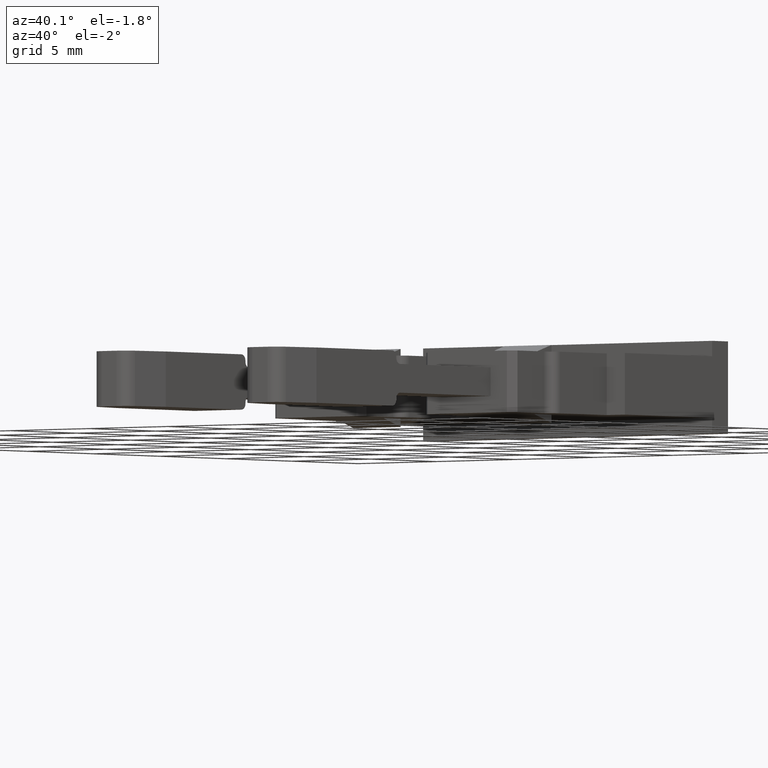
[diagram: clean part render]
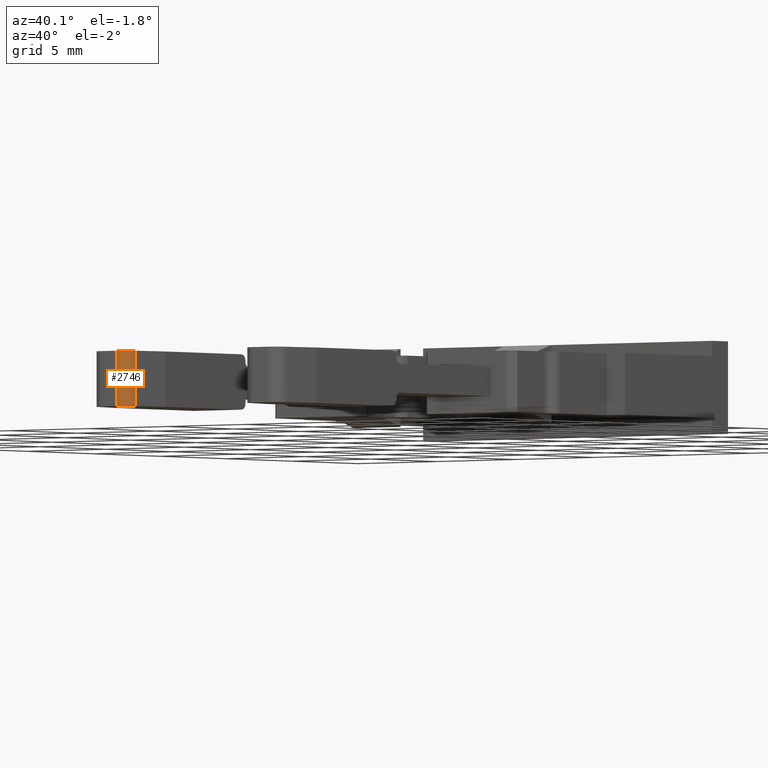
[diagram: same view with one face highlighted and labeled with its STEP entity id]
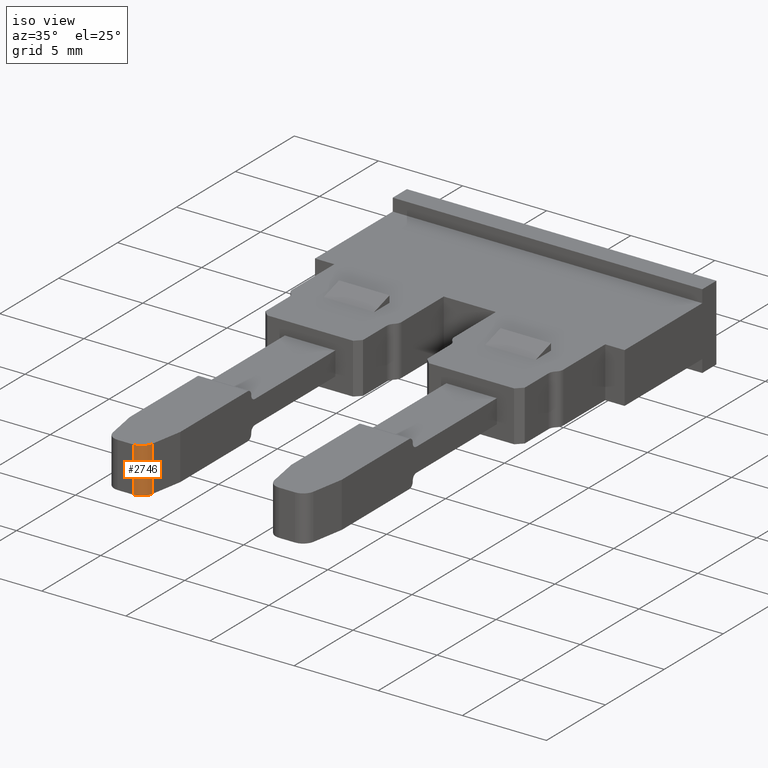
[diagram: same view with one face highlighted and labeled with its STEP entity id]
A machine part, auxiliary view. The second image highlights one B-rep face of the part: STEP entity #2746.
A second angle (iso view) of the same face is appended — the face is thin or edge-on in the first view.
In plain terms, the highlighted cylindrical surface (edge-blend (fillet) strip) has radius 0.7 mm, axis along (-0, -0, 1).
Its self-contained STEP definition (entity closure, byte-faithful):
#37 = VECTOR ( 'NONE', #1267, 1000.000000000000000 ) ;
#201 = VECTOR ( 'NONE', #420, 1000.000000000000000 ) ;
#275 = AXIS2_PLACEMENT_3D ( 'NONE', #669, #671, #646 ) ;
#410 = CARTESIAN_POINT ( 'NONE',  ( 1144.066249097332000, 644.1282913512167200, -8.894767489098006400 ) ) ;
#418 = LINE ( 'NONE', #410, #201 ) ;
#420 = DIRECTION ( 'NONE',  ( 5.364441115151316900E-014, 2.347622273454535600E-024, -1.000000000000000000 ) ) ;
#474 = CARTESIAN_POINT ( 'NONE',  ( 1144.755614559366700, 644.7067378249282700, 2.847804784774987200 ) ) ;
#481 = CARTESIAN_POINT ( 'NONE',  ( 1144.727327763530400, 644.5463151644213400, 2.847804784774983200 ) ) ;
#525 = CARTESIAN_POINT ( 'NONE',  ( 1144.640987157445100, 644.3967687734993900, 2.847804784774977900 ) ) ;
#527 = CARTESIAN_POINT ( 'NONE',  ( 1144.391413844856700, 644.1873518378539500, 2.847804784774964600 ) ) ;
#536 = CARTESIAN_POINT ( 'NONE',  ( 1144.229146527706700, 644.1282913512168300, 2.847804784774955700 ) ) ;
#537 = CARTESIAN_POINT ( 'NONE',  ( 1144.066249097331400, 644.1282913512167200, 2.847804784774927700 ) ) ;
#645 = CYLINDRICAL_SURFACE ( 'NONE', #275, 0.6999999999999229100 ) ;
#646 = DIRECTION ( 'NONE',  ( 1.000000000000000000, 0.0000000000000000000, 5.451988067356280100E-014 ) ) ;
#669 = CARTESIAN_POINT ( 'NONE',  ( 1144.066249097332300, 644.8282913512166500, -8.894767489098006400 ) ) ;
#670 = FACE_OUTER_BOUND ( 'NONE', #1668, .T. ) ;
#671 = DIRECTION ( 'NONE',  ( -5.364441115151316900E-014, -2.347622273454535600E-024, 1.000000000000000000 ) ) ;
#1019 = CARTESIAN_POINT ( 'NONE',  ( 1144.755614559366700, 644.7067378249282700, 2.847804784774987200 ) ) ;
#1256 = LINE ( 'NONE', #1270, #37 ) ;
#1267 = DIRECTION ( 'NONE',  ( -5.202683949995305800E-014, 9.173720110939495000E-015, 1.000000000000000000 ) ) ;
#1270 = CARTESIAN_POINT ( 'NONE',  ( 1144.755614559367400, 644.7067378249281500, -8.894767489097951300 ) ) ;
#1415 = CARTESIAN_POINT ( 'NONE',  ( 1144.229146527706700, 644.1282913512167200, 0.1522013187406513800 ) ) ;
#1421 = CARTESIAN_POINT ( 'NONE',  ( 1144.391413844857000, 644.1873518378542900, 0.1522013187406601200 ) ) ;
#1444 = CARTESIAN_POINT ( 'NONE',  ( 1144.066249097331600, 644.1282913512167200, 0.1522013187406496500 ) ) ;
#1450 = CARTESIAN_POINT ( 'NONE',  ( 1144.640987157445100, 644.3967687734991600, 0.1522013187406734400 ) ) ;
#1451 = CARTESIAN_POINT ( 'NONE',  ( 1144.755614559366900, 644.7067378249282700, 0.1522013187407039700 ) ) ;
#1454 = CARTESIAN_POINT ( 'NONE',  ( 1144.727327763530900, 644.5463151644213400, 0.1522013187406780800 ) ) ;
#1668 = EDGE_LOOP ( 'NONE', ( #2253, #2167, #2194, #2223 ) ) ;
#1826 = VERTEX_POINT ( 'NONE', #2436 ) ;
#1832 = VERTEX_POINT ( 'NONE', #2470 ) ;
#1840 = VERTEX_POINT ( 'NONE', #2477 ) ;
#1847 = VERTEX_POINT ( 'NONE', #1019 ) ;
#2167 = ORIENTED_EDGE ( 'NONE', *, *, #2692, .T. ) ;
#2194 = ORIENTED_EDGE ( 'NONE', *, *, #2675, .T. ) ;
#2223 = ORIENTED_EDGE ( 'NONE', *, *, #2619, .T. ) ;
#2253 = ORIENTED_EDGE ( 'NONE', *, *, #2724, .T. ) ;
#2436 = CARTESIAN_POINT ( 'NONE',  ( 1144.066249097331400, 644.1282913512167200, 2.847804784774927700 ) ) ;
#2470 = CARTESIAN_POINT ( 'NONE',  ( 1144.755614559366900, 644.7067378249282700, 0.1522013187407039700 ) ) ;
#2477 = CARTESIAN_POINT ( 'NONE',  ( 1144.066249097331600, 644.1282913512167200, 0.1522013187406496500 ) ) ;
#2619 = EDGE_CURVE ( 'NONE', #1832, #1847, #1256, .T. ) ;
#2675 = EDGE_CURVE ( 'NONE', #1840, #1832, #2883, .T. ) ;
#2692 = EDGE_CURVE ( 'NONE', #1826, #1840, #418, .T. ) ;
#2724 = EDGE_CURVE ( 'NONE', #1847, #1826, #2885, .T. ) ;
#2746 = ADVANCED_FACE ( 'NONE', ( #670 ), #645, .T. ) ;
#2883 = B_SPLINE_CURVE_WITH_KNOTS ( 'NONE', 3,
 ( #1444, #1415, #1421, #1450, #1454, #1451 ),
 .UNSPECIFIED., .F., .F.,
 ( 4, 2, 4 ),
 ( 0.0000000000000000000, 0.5000000000000000000, 1.000000000000000000 ),
 .UNSPECIFIED. ) ;
#2885 = B_SPLINE_CURVE_WITH_KNOTS ( 'NONE', 3,
 ( #474, #481, #525, #527, #536, #537 ),
 .UNSPECIFIED., .F., .F.,
 ( 4, 2, 4 ),
 ( 0.0000000000000000000, 0.5000000000000000000, 1.000000000000000000 ),
 .UNSPECIFIED. ) ;